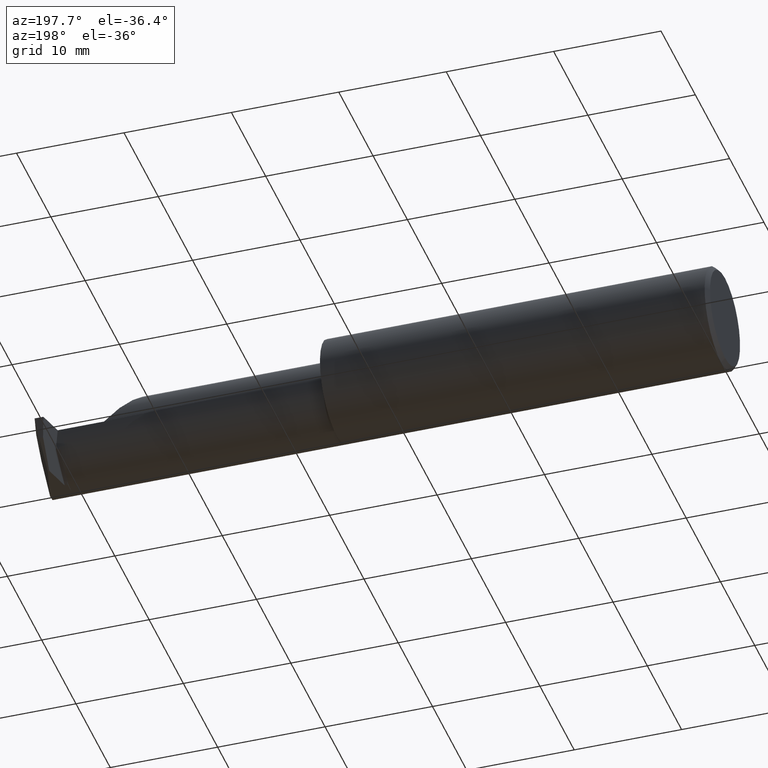
[diagram: clean part render]
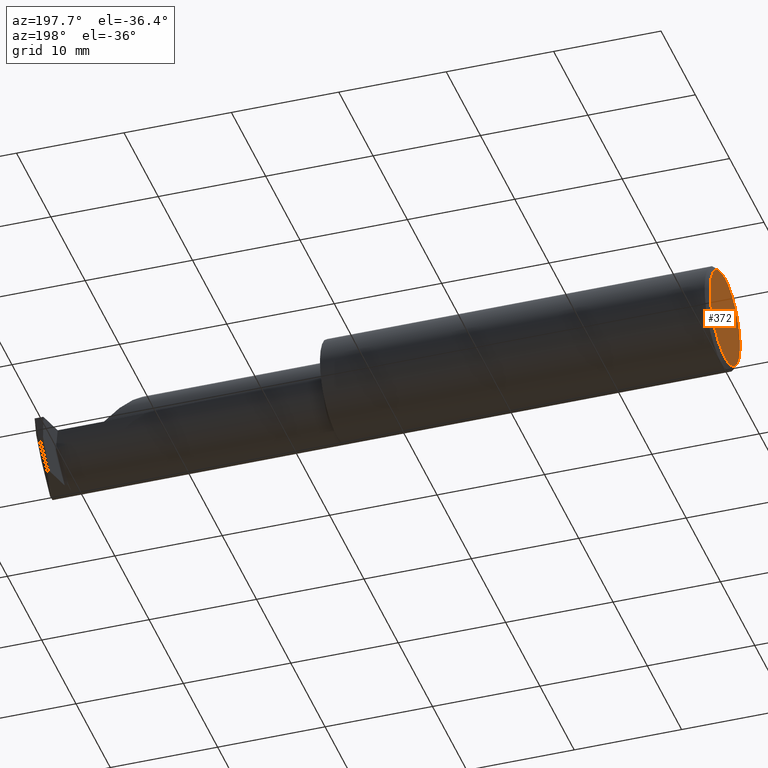
[diagram: same view with one face highlighted and labeled with its STEP entity id]
A machine part, auxiliary view. The second image highlights one B-rep face of the part: STEP entity #372.
In plain terms, the highlighted planar face has unit normal (1, 0, 0).
Its self-contained STEP definition (entity closure, byte-faithful):
#23 = DIRECTION ( 'NONE',  ( 0.000000000000000000, 0.000000000000000000, -1.000000000000000000 ) ) ;
#55 = ORIENTED_EDGE ( 'NONE', *, *, #900, .T. ) ;
#100 = DIRECTION ( 'NONE',  ( -1.000000000000000000, -0.000000000000000000, -0.000000000000000000 ) ) ;
#120 = DIRECTION ( 'NONE',  ( 0.000000000000000000, 0.000000000000000000, -1.000000000000000000 ) ) ;
#173 = CARTESIAN_POINT ( 'NONE',  ( 0.000000000000000000, 0.000000000000000000, 0.000000000000000000 ) ) ;
#200 = AXIS2_PLACEMENT_3D ( 'NONE', #173, #490, #479 ) ;
#218 = CARTESIAN_POINT ( 'NONE',  ( 0.000000000000000000, 0.000000000000000000, -0.1723499999999993371 ) ) ;
#246 = FACE_OUTER_BOUND ( 'NONE', #912, .T. ) ;
#261 = EDGE_CURVE ( 'NONE', #428, #722, #534, .T. ) ;
#283 = AXIS2_PLACEMENT_3D ( 'NONE', #496, #728, #120 ) ;
#325 = ORIENTED_EDGE ( 'NONE', *, *, #261, .T. ) ;
#372 = ADVANCED_FACE ( 'NONE', ( #246 ), #866, .F. ) ;
#428 = VERTEX_POINT ( 'NONE', #218 ) ;
#451 = AXIS2_PLACEMENT_3D ( 'NONE', #678, #100, #23 ) ;
#479 = DIRECTION ( 'NONE',  ( 0.000000000000000000, 0.000000000000000000, -1.000000000000000000 ) ) ;
#490 = DIRECTION ( 'NONE',  ( 1.000000000000000000, 0.000000000000000000, 0.000000000000000000 ) ) ;
#496 = CARTESIAN_POINT ( 'NONE',  ( 0.000000000000000000, 0.000000000000000000, 0.000000000000000000 ) ) ;
#534 = CIRCLE ( 'NONE', #283, 0.1723499999999993371 ) ;
#551 = CIRCLE ( 'NONE', #451, 0.1723499999999993371 ) ;
#678 = CARTESIAN_POINT ( 'NONE',  ( 0.000000000000000000, 0.000000000000000000, 0.000000000000000000 ) ) ;
#722 = VERTEX_POINT ( 'NONE', #869 ) ;
#728 = DIRECTION ( 'NONE',  ( -1.000000000000000000, -0.000000000000000000, -0.000000000000000000 ) ) ;
#866 = PLANE ( 'NONE',  #200 ) ;
#869 = CARTESIAN_POINT ( 'NONE',  ( 0.000000000000000000, 2.202527268266510421E-17, 0.1723499999999993371 ) ) ;
#900 = EDGE_CURVE ( 'NONE', #722, #428, #551, .T. ) ;
#912 = EDGE_LOOP ( 'NONE', ( #325, #55 ) ) ;